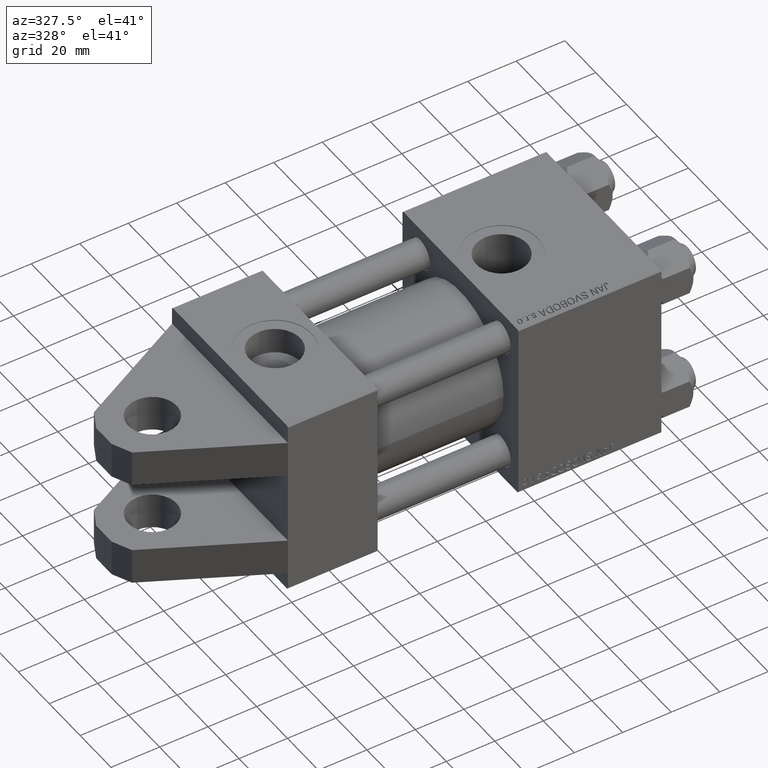
[diagram: clean part render]
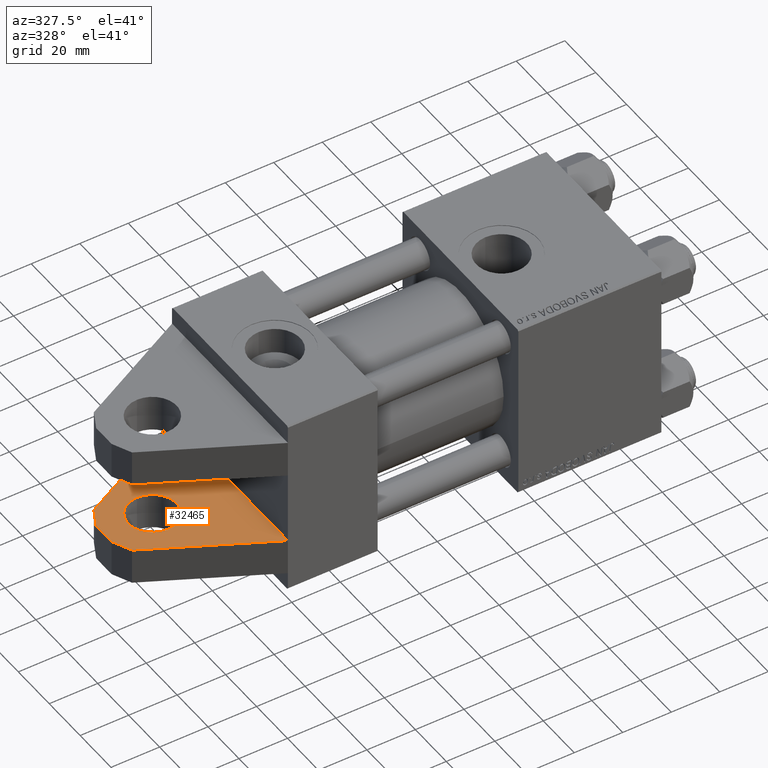
[diagram: same view with one face highlighted and labeled with its STEP entity id]
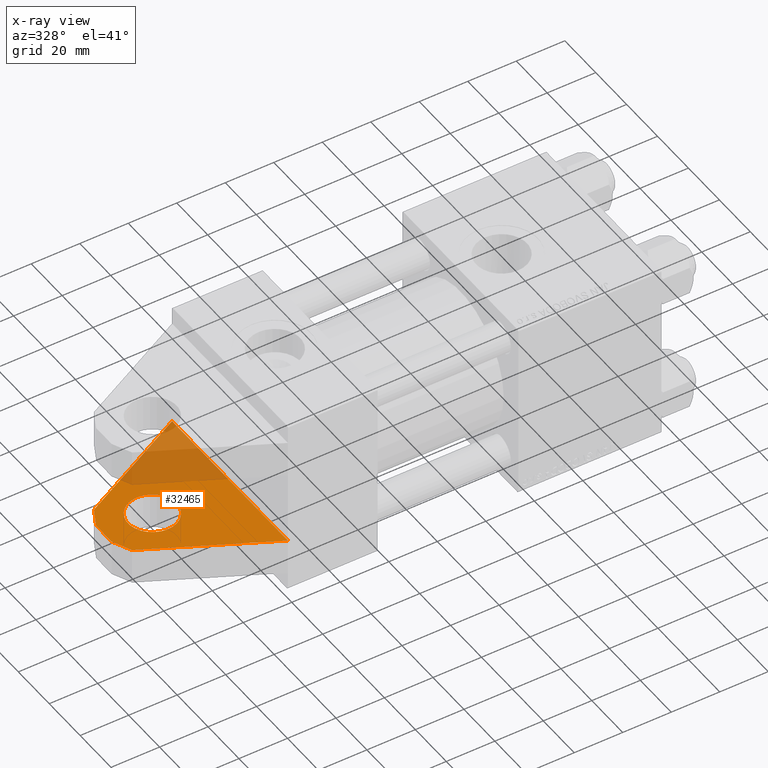
[diagram: x-ray of the same camera — body ghosted, the highlighted face saturated]
A machine part, auxiliary view. The second image highlights one B-rep face of the part: STEP entity #32465.
The next image is the same camera in x-ray: the body ghosted, the highlighted face saturated — about 29% of this face is hidden behind the body in this view.
In plain terms, the highlighted planar face has unit normal (0, 0, -1).
Its self-contained STEP definition (entity closure, byte-faithful):
#1905 = VERTEX_POINT ( 'NONE', #49126 ) ;
#1986 = LINE ( 'NONE', #37154, #41155 ) ;
#2234 = DIRECTION ( 'NONE',  ( 0.4566099510066921607, 0.000000000000000000, 0.8896669897448518105 ) ) ;
#2968 = EDGE_LOOP ( 'NONE', ( #5388, #42642, #29782, #30224, #24871, #8203 ) ) ;
#3257 = DIRECTION ( 'NONE',  ( 0.000000000000000000, 0.000000000000000000, 1.000000000000000000 ) ) ;
#4972 = FACE_BOUND ( 'NONE', #22236, .T. ) ;
#5388 = ORIENTED_EDGE ( 'NONE', *, *, #31290, .F. ) ;
#5551 = CARTESIAN_POINT ( 'NONE',  ( -48.43732805352595960, 15.00000000000000000, -12.64017464471899110 ) ) ;
#6690 = CARTESIAN_POINT ( 'NONE',  ( 0.000000000000000000, 15.00000000000000000, 0.000000000000000000 ) ) ;
#7031 = CARTESIAN_POINT ( 'NONE',  ( -52.00000000000000711, 15.00000000000000000, -5.000000000000007105 ) ) ;
#7770 = VERTEX_POINT ( 'NONE', #31040 ) ;
#8203 = ORIENTED_EDGE ( 'NONE', *, *, #41084, .F. ) ;
#8648 = CIRCLE ( 'NONE', #31127, 10.00000000000000000 ) ;
#9123 = AXIS2_PLACEMENT_3D ( 'NONE', #6690, #9975, #29066 ) ;
#9225 = CARTESIAN_POINT ( 'NONE',  ( -48.15077811301358679, 15.00000000000000000, 12.49989272354909353 ) ) ;
#9407 = VECTOR ( 'NONE', #3257, 1000.000000000000000 ) ;
#9975 = DIRECTION ( 'NONE',  ( -0.000000000000000000, 1.000000000000000000, 0.000000000000000000 ) ) ;
#10974 = ORIENTED_EDGE ( 'NONE', *, *, #11636, .T. ) ;
#11636 = EDGE_CURVE ( 'NONE', #25008, #7770, #44789, .T. ) ;
#13840 = DIRECTION ( 'NONE',  ( 0.000000000000000000, 0.000000000000000000, 1.000000000000000000 ) ) ;
#14111 = VECTOR ( 'NONE', #31843, 1000.000000000000114 ) ;
#14509 = CARTESIAN_POINT ( 'NONE',  ( 0.000000000000000000, 15.00000000000000000, 37.50000000000000000 ) ) ;
#15095 = DIRECTION ( 'NONE',  ( 0.000000000000000000, 0.000000000000000000, 1.000000000000000000 ) ) ;
#16268 = CARTESIAN_POINT ( 'NONE',  ( -32.00000000000000000, 15.00000000000000000, -10.00000000000000711 ) ) ;
#17357 = VERTEX_POINT ( 'NONE', #14509 ) ;
#19002 = VECTOR ( 'NONE', #24888, 1000.000000000000000 ) ;
#19940 = CARTESIAN_POINT ( 'NONE',  ( -48.43732805352595960, 15.00000000000000000, -12.64017464471899110 ) ) ;
#21375 = DIRECTION ( 'NONE',  ( 0.000000000000000000, 1.000000000000000000, 0.000000000000000000 ) ) ;
#22236 = EDGE_LOOP ( 'NONE', ( #10974, #26036 ) ) ;
#22374 = DIRECTION ( 'NONE',  ( 0.000000000000000000, 0.000000000000000000, -1.000000000000000000 ) ) ;
#22815 = DIRECTION ( 'NONE',  ( -0.4226182617406929465, -0.000000000000000000, 0.9063077870366529343 ) ) ;
#23116 = AXIS2_PLACEMENT_3D ( 'NONE', #42495, #26889, #15095 ) ;
#24871 = ORIENTED_EDGE ( 'NONE', *, *, #45513, .F. ) ;
#24888 = DIRECTION ( 'NONE',  ( -0.8896669897448514774, -0.000000000000000000, 0.4566099510066927158 ) ) ;
#25008 = VERTEX_POINT ( 'NONE', #16268 ) ;
#26036 = ORIENTED_EDGE ( 'NONE', *, *, #46742, .T. ) ;
#26889 = DIRECTION ( 'NONE',  ( 0.000000000000000000, 1.000000000000000000, 0.000000000000000000 ) ) ;
#27020 = VERTEX_POINT ( 'NONE', #19940 ) ;
#27145 = VERTEX_POINT ( 'NONE', #36756 ) ;
#27189 = VERTEX_POINT ( 'NONE', #44546 ) ;
#28247 = EDGE_CURVE ( 'NONE', #27020, #27189, #48972, .T. ) ;
#29066 = DIRECTION ( 'NONE',  ( 0.000000000000000000, -0.000000000000000000, 1.000000000000000000 ) ) ;
#29263 = VERTEX_POINT ( 'NONE', #44657 ) ;
#29782 = ORIENTED_EDGE ( 'NONE', *, *, #28247, .F. ) ;
#30224 = ORIENTED_EDGE ( 'NONE', *, *, #43939, .F. ) ;
#31040 = CARTESIAN_POINT ( 'NONE',  ( -32.00000000000000000, 15.00000000000000000, 9.999999999999992895 ) ) ;
#31127 = AXIS2_PLACEMENT_3D ( 'NONE', #44248, #21375, #13840 ) ;
#31290 = EDGE_CURVE ( 'NONE', #1905, #29263, #1986, .T. ) ;
#31843 = DIRECTION ( 'NONE',  ( 0.8875055616531780656, 0.000000000000000000, 0.4607970030660757943 ) ) ;
#32465 = ADVANCED_FACE ( 'NONE', ( #39408, #4972 ), #43428, .F. ) ;
#32928 = LINE ( 'NONE', #5551, #19002 ) ;
#33157 = VECTOR ( 'NONE', #22815, 1000.000000000000114 ) ;
#33689 = LINE ( 'NONE', #41484, #38304 ) ;
#36756 = CARTESIAN_POINT ( 'NONE',  ( 0.000000000000000000, 15.00000000000000000, -37.50000000000000000 ) ) ;
#37154 = CARTESIAN_POINT ( 'NONE',  ( -52.00000000000000711, 15.00000000000000000, 4.999999999999992895 ) ) ;
#38304 = VECTOR ( 'NONE', #22374, 1000.000000000000000 ) ;
#39139 = LINE ( 'NONE', #9225, #14111 ) ;
#39408 = FACE_OUTER_BOUND ( 'NONE', #2968, .T. ) ;
#41084 = EDGE_CURVE ( 'NONE', #29263, #17357, #39139, .T. ) ;
#41155 = VECTOR ( 'NONE', #2234, 1000.000000000000000 ) ;
#41484 = CARTESIAN_POINT ( 'NONE',  ( 0.000000000000000000, 15.00000000000000000, 37.49999999999999289 ) ) ;
#42495 = CARTESIAN_POINT ( 'NONE',  ( -32.00000000000000000, 15.00000000000000000, -6.938893903907228378E-15 ) ) ;
#42642 = ORIENTED_EDGE ( 'NONE', *, *, #44770, .F. ) ;
#43428 = PLANE ( 'NONE',  #9123 ) ;
#43939 = EDGE_CURVE ( 'NONE', #27145, #27020, #32928, .T. ) ;
#44248 = CARTESIAN_POINT ( 'NONE',  ( -32.00000000000000000, 15.00000000000000000, -6.938893903907228378E-15 ) ) ;
#44546 = CARTESIAN_POINT ( 'NONE',  ( -52.00000000000000711, 15.00000000000000000, -5.000000000000007105 ) ) ;
#44657 = CARTESIAN_POINT ( 'NONE',  ( -48.15077811301358679, 15.00000000000000000, 12.49989272354909353 ) ) ;
#44770 = EDGE_CURVE ( 'NONE', #27189, #1905, #49010, .T. ) ;
#44789 = CIRCLE ( 'NONE', #23116, 10.00000000000000000 ) ;
#45513 = EDGE_CURVE ( 'NONE', #17357, #27145, #33689, .T. ) ;
#46742 = EDGE_CURVE ( 'NONE', #7770, #25008, #8648, .T. ) ;
#48972 = LINE ( 'NONE', #49453, #33157 ) ;
#49010 = LINE ( 'NONE', #7031, #9407 ) ;
#49126 = CARTESIAN_POINT ( 'NONE',  ( -52.00000000000000711, 15.00000000000000000, 4.999999999999992895 ) ) ;
#49453 = CARTESIAN_POINT ( 'NONE',  ( -52.00000000000000711, 15.00000000000000000, -5.000000000000007105 ) ) ;